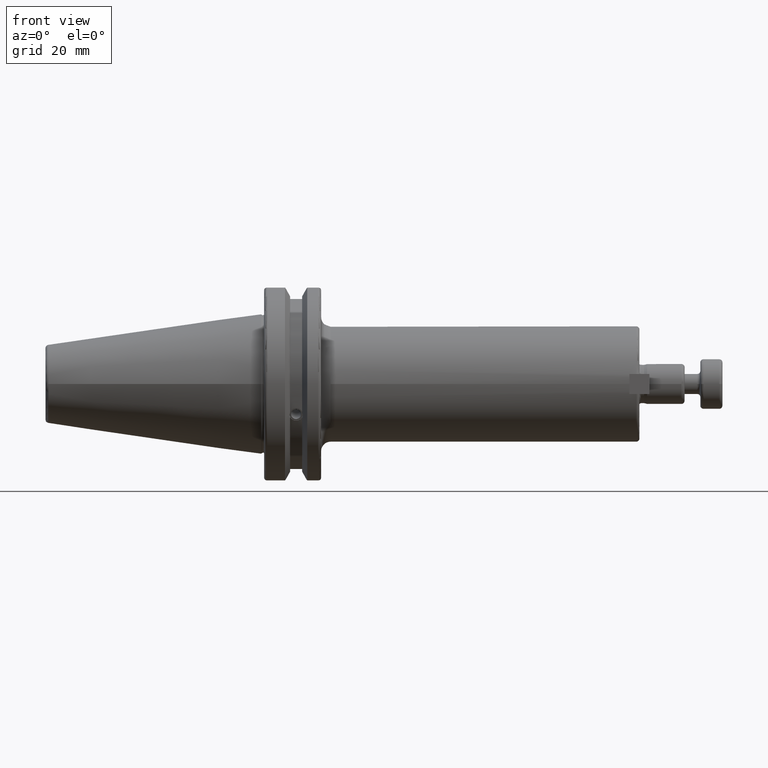
[diagram: clean part render]
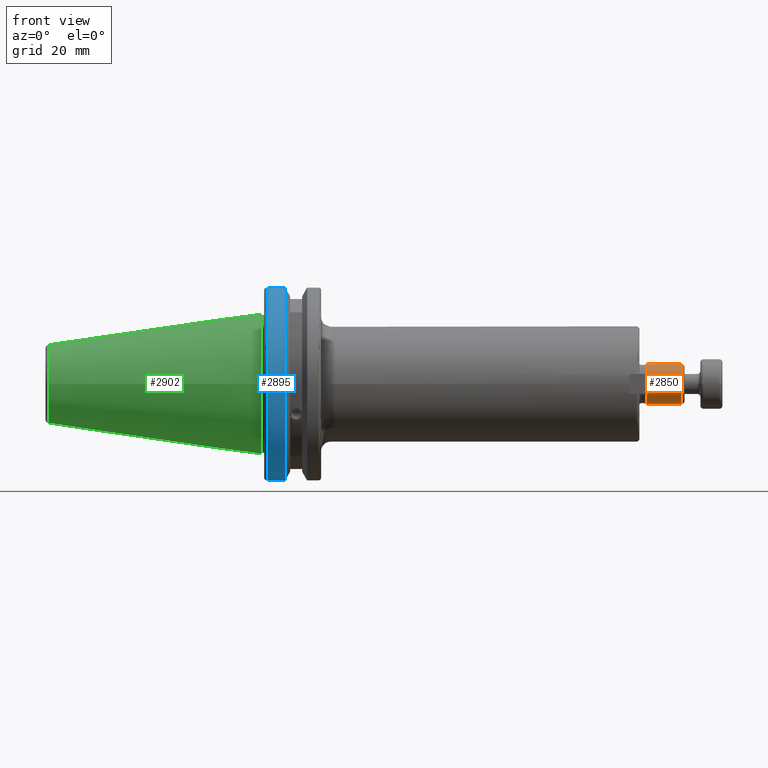
[diagram: same view with three faces highlighted in distinct colors, each labeled with its STEP entity id]
A machine part, front view with three faces highlighted in distinct colors.
Their STEP definitions:

[orange] entity #2850 — the highlighted cylindrical surface (bore or boss wall) has radius 6.35 mm, axis along (1, 0, 0).
#121=CYLINDRICAL_SURFACE('',#3145,6.35);
#262=FACE_OUTER_BOUND('',#423,.T.);
#423=EDGE_LOOP('',(#2000,#2001,#2002,#2003,#2004,#2005,#2006));
#601=LINE('',#4637,#775);
#775=VECTOR('',#3613,6.35);
#961=CIRCLE('',#3142,6.35);
#962=CIRCLE('',#3143,6.35);
#963=CIRCLE('',#3144,6.35);
#964=CIRCLE('',#3146,6.35);
#965=CIRCLE('',#3147,6.35);
#1166=VERTEX_POINT('',#4628);
#1167=VERTEX_POINT('',#4630);
#1168=VERTEX_POINT('',#4632);
#1169=VERTEX_POINT('',#4636);
#1170=VERTEX_POINT('',#4638);
#1495=EDGE_CURVE('',#1166,#1167,#961,.T.);
#1496=EDGE_CURVE('',#1167,#1168,#962,.T.);
#1497=EDGE_CURVE('',#1168,#1166,#963,.T.);
#1498=EDGE_CURVE('',#1167,#1169,#601,.T.);
#1499=EDGE_CURVE('',#1169,#1170,#964,.T.);
#1500=EDGE_CURVE('',#1170,#1169,#965,.T.);
#2000=ORIENTED_EDGE('',*,*,#1497,.F.);
#2001=ORIENTED_EDGE('',*,*,#1496,.F.);
#2002=ORIENTED_EDGE('',*,*,#1498,.T.);
#2003=ORIENTED_EDGE('',*,*,#1499,.T.);
#2004=ORIENTED_EDGE('',*,*,#1500,.T.);
#2005=ORIENTED_EDGE('',*,*,#1498,.F.);
#2006=ORIENTED_EDGE('',*,*,#1495,.F.);
#2850=ADVANCED_FACE('',(#262),#121,.T.);
#3142=AXIS2_PLACEMENT_3D('',#4631,#3605,#3606);
#3143=AXIS2_PLACEMENT_3D('',#4633,#3607,#3608);
#3144=AXIS2_PLACEMENT_3D('',#4634,#3609,#3610);
#3145=AXIS2_PLACEMENT_3D('',#4635,#3611,#3612);
#3146=AXIS2_PLACEMENT_3D('',#4639,#3614,#3615);
#3147=AXIS2_PLACEMENT_3D('',#4640,#3616,#3617);
#3605=DIRECTION('center_axis',(1.,0.,0.));
#3606=DIRECTION('ref_axis',(0.,-1.,1.83697019872103E-16));
#3607=DIRECTION('center_axis',(1.,0.,0.));
#3608=DIRECTION('ref_axis',(0.,-1.,1.83697019872103E-16));
#3609=DIRECTION('center_axis',(1.,0.,0.));
#3610=DIRECTION('ref_axis',(0.,-1.,1.83697019872103E-16));
#3611=DIRECTION('center_axis',(1.,0.,0.));
#3612=DIRECTION('ref_axis',(0.,1.,0.));
#3613=DIRECTION('',(-1.,0.,0.));
#3614=DIRECTION('center_axis',(1.,0.,0.));
#3615=DIRECTION('ref_axis',(0.,0.,-1.));
#3616=DIRECTION('center_axis',(1.,0.,0.));
#3617=DIRECTION('ref_axis',(0.,0.,-1.));
#4628=CARTESIAN_POINT('',(133.188,-7.7765071745857E-16,6.35));
#4630=CARTESIAN_POINT('',(133.188,-6.35,-7.7765071745857E-16));
#4631=CARTESIAN_POINT('Origin',(133.188,0.,0.));
#4632=CARTESIAN_POINT('',(133.188,6.35,-3.88825358729285E-16));
#4633=CARTESIAN_POINT('Origin',(133.188,0.,0.));
#4634=CARTESIAN_POINT('Origin',(133.188,0.,0.));
#4635=CARTESIAN_POINT('Origin',(128.254506350946,0.,0.));
#4636=CARTESIAN_POINT('',(122.321012701892,-6.35,-7.7765071745857E-16));
#4637=CARTESIAN_POINT('',(128.254506350946,-6.35,-7.7765071745857E-16));
#4638=CARTESIAN_POINT('',(122.321012701892,6.35,0.));
#4639=CARTESIAN_POINT('Origin',(122.321012701892,0.,0.));
#4640=CARTESIAN_POINT('Origin',(122.321012701892,0.,0.));

[blue] entity #2895 — the highlighted cylindrical surface (partial cylindrical patch) has radius 31.75 mm, axis along (1, 0, 0).
#138=CYLINDRICAL_SURFACE('',#3264,31.75);
#307=FACE_OUTER_BOUND('',#475,.T.);
#475=EDGE_LOOP('',(#2298,#2299,#2300,#2301));
#659=LINE('',#5221,#833);
#660=LINE('',#5227,#834);
#833=VECTOR('',#3907,10.);
#834=VECTOR('',#3910,10.);
#1018=CIRCLE('',#3261,31.75);
#1020=CIRCLE('',#3265,31.75);
#1293=VERTEX_POINT('',#5199);
#1294=VERTEX_POINT('',#5208);
#1295=VERTEX_POINT('',#5220);
#1296=VERTEX_POINT('',#5226);
#1664=EDGE_CURVE('',#1293,#1294,#1018,.T.);
#1667=EDGE_CURVE('',#1294,#1295,#659,.T.);
#1669=EDGE_CURVE('',#1296,#1293,#660,.T.);
#1670=EDGE_CURVE('',#1295,#1296,#1020,.T.);
#2298=ORIENTED_EDGE('',*,*,#1664,.F.);
#2299=ORIENTED_EDGE('',*,*,#1669,.F.);
#2300=ORIENTED_EDGE('',*,*,#1670,.F.);
#2301=ORIENTED_EDGE('',*,*,#1667,.F.);
#2895=ADVANCED_FACE('',(#307),#138,.T.);
#3261=AXIS2_PLACEMENT_3D('',#5209,#3901,#3902);
#3264=AXIS2_PLACEMENT_3D('',#5225,#3908,#3909);
#3265=AXIS2_PLACEMENT_3D('',#5228,#3911,#3912);
#3901=DIRECTION('center_axis',(-1.,0.,0.));
#3902=DIRECTION('ref_axis',(0.,-1.,1.60812264967664E-16));
#3907=DIRECTION('',(1.,0.,0.));
#3908=DIRECTION('center_axis',(1.,0.,0.));
#3909=DIRECTION('ref_axis',(0.,-1.,1.22464679914735E-16));
#3910=DIRECTION('',(-1.,0.,0.));
#3911=DIRECTION('center_axis',(1.,0.,0.));
#3912=DIRECTION('ref_axis',(0.,0.,-1.));
#5199=CARTESIAN_POINT('',(2.,-8.67204822802685,-30.5427254764662));
#5208=CARTESIAN_POINT('',(2.,-8.67204822802685,30.5427254764662));
#5209=CARTESIAN_POINT('Origin',(2.,0.,0.));
#5220=CARTESIAN_POINT('',(7.60793323092436,-8.67204822802685,30.5427254764662));
#5221=CARTESIAN_POINT('',(4.30396661546218,-8.67204822802685,30.5427254764662));
#5225=CARTESIAN_POINT('Origin',(4.30396661546218,0.,0.));
#5226=CARTESIAN_POINT('',(7.60793323092436,-8.67204822802685,-30.5427254764662));
#5227=CARTESIAN_POINT('',(4.30396661546218,-8.67204822802685,-30.5427254764662));
#5228=CARTESIAN_POINT('Origin',(7.60793323092436,0.,0.));

[green] entity #2902 — the highlighted conical surface has half-angle 8.297 deg.
#166=CONICAL_SURFACE('',#3283,17.2484375,0.144812498238939);
#314=FACE_OUTER_BOUND('',#485,.T.);
#485=EDGE_LOOP('',(#2343,#2344,#2345,#2346,#2347,#2348,#2349));
#670=LINE('',#5303,#844);
#844=VECTOR('',#3962,17.2484375);
#1024=CIRCLE('',#3274,12.3966635780937);
#1025=CIRCLE('',#3275,12.3966635780937);
#1029=CIRCLE('',#3279,12.3966635780937);
#1032=CIRCLE('',#3284,22.225);
#1033=CIRCLE('',#3285,22.225);
#1308=VERTEX_POINT('',#5282);
#1309=VERTEX_POINT('',#5283);
#1310=VERTEX_POINT('',#5285);
#1315=VERTEX_POINT('',#5299);
#1316=VERTEX_POINT('',#5300);
#1687=EDGE_CURVE('',#1308,#1309,#1024,.T.);
#1688=EDGE_CURVE('',#1309,#1310,#1025,.T.);
#1692=EDGE_CURVE('',#1310,#1308,#1029,.T.);
#1695=EDGE_CURVE('',#1315,#1316,#1032,.T.);
#1696=EDGE_CURVE('',#1316,#1315,#1033,.T.);
#1697=EDGE_CURVE('',#1316,#1309,#670,.T.);
#2343=ORIENTED_EDGE('',*,*,#1695,.F.);
#2344=ORIENTED_EDGE('',*,*,#1696,.F.);
#2345=ORIENTED_EDGE('',*,*,#1697,.T.);
#2346=ORIENTED_EDGE('',*,*,#1687,.F.);
#2347=ORIENTED_EDGE('',*,*,#1692,.F.);
#2348=ORIENTED_EDGE('',*,*,#1688,.F.);
#2349=ORIENTED_EDGE('',*,*,#1697,.F.);
#2902=ADVANCED_FACE('',(#314),#166,.T.);
#3274=AXIS2_PLACEMENT_3D('',#5284,#3938,#3939);
#3275=AXIS2_PLACEMENT_3D('',#5286,#3940,#3941);
#3279=AXIS2_PLACEMENT_3D('',#5292,#3948,#3949);
#3283=AXIS2_PLACEMENT_3D('',#5298,#3956,#3957);
#3284=AXIS2_PLACEMENT_3D('',#5301,#3958,#3959);
#3285=AXIS2_PLACEMENT_3D('',#5302,#3960,#3961);
#3938=DIRECTION('center_axis',(-1.,0.,0.));
#3939=DIRECTION('ref_axis',(0.,-1.,3.06161699786838E-17));
#3940=DIRECTION('center_axis',(-1.,0.,0.));
#3941=DIRECTION('ref_axis',(0.,-1.,3.06161699786838E-17));
#3948=DIRECTION('center_axis',(-1.,0.,0.));
#3949=DIRECTION('ref_axis',(0.,-1.,3.06161699786838E-17));
#3956=DIRECTION('center_axis',(1.,0.,0.));
#3957=DIRECTION('ref_axis',(0.,1.,0.));
#3958=DIRECTION('center_axis',(1.,0.,0.));
#3959=DIRECTION('ref_axis',(0.,0.,-1.));
#3960=DIRECTION('center_axis',(1.,0.,0.));
#3961=DIRECTION('ref_axis',(0.,0.,-1.));
#3962=DIRECTION('',(-0.989532981063282,0.144306893071729,1.76724974695192E-17));
#5282=CARTESIAN_POINT('',(-67.3943068930717,12.3966635780937,-3.79538359275475E-15));
#5283=CARTESIAN_POINT('',(-67.3943068930718,-12.3966635780937,-1.5181534371019E-15));
#5284=CARTESIAN_POINT('Origin',(-67.3943068930717,0.,-1.89769179637738E-15));
#5285=CARTESIAN_POINT('',(-67.3943068930717,-1.5181534371019E-15,12.3966635780937));
#5286=CARTESIAN_POINT('Origin',(-67.3943068930717,0.,-1.89769179637738E-15));
#5292=CARTESIAN_POINT('Origin',(-67.3943068930717,0.,-1.89769179637738E-15));
#5298=CARTESIAN_POINT('Origin',(-34.125,0.,0.));
#5299=CARTESIAN_POINT('',(0.,22.225,0.));
#5300=CARTESIAN_POINT('',(0.,-22.225,-2.72177751110499E-15));
#5301=CARTESIAN_POINT('Origin',(0.,0.,0.));
#5302=CARTESIAN_POINT('Origin',(0.,0.,0.));
#5303=CARTESIAN_POINT('',(-34.125,-17.2484375,-2.11232437746682E-15));